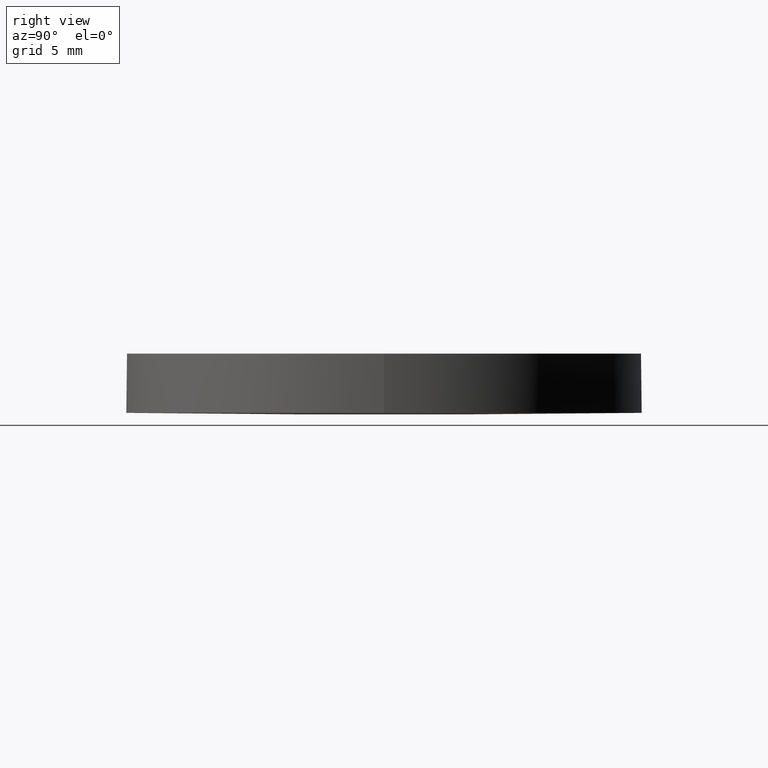
[diagram: clean part render]
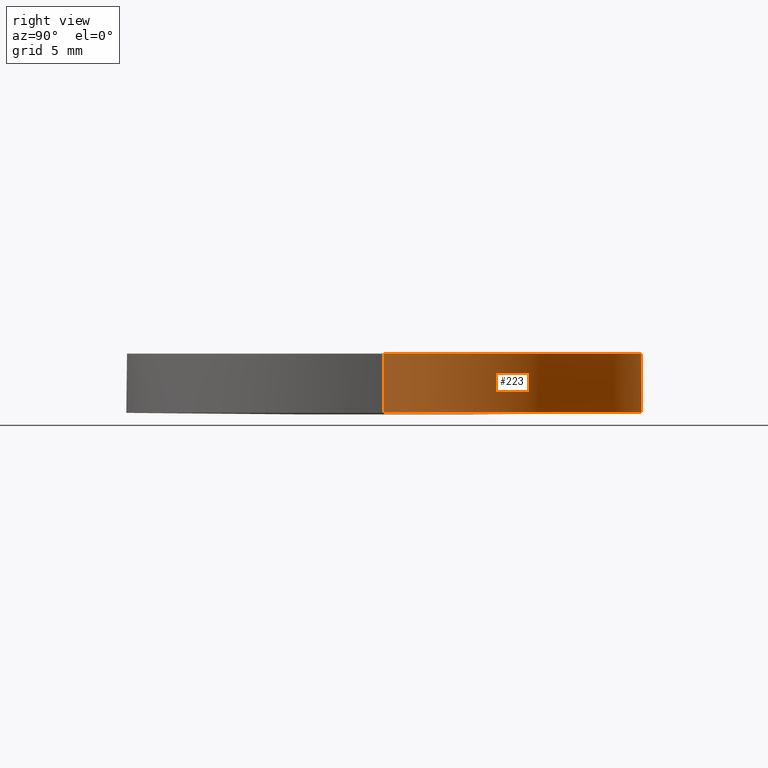
[diagram: same view with one face highlighted and labeled with its STEP entity id]
A machine part, right view. The second image highlights one B-rep face of the part: STEP entity #223.
In plain terms, the highlighted cylindrical surface (partial cylindrical patch) has radius 12.7 mm, axis along (0, 0, 1).
Its self-contained STEP definition (entity closure, byte-faithful):
#1 = CARTESIAN_POINT ( 'NONE',  ( 4.996003610813200500E-016, 2.442490654175340100E-015, 0.08182665158325720700 ) ) ;
#2 = EDGE_CURVE ( 'NONE', #45, #191, #126, .T. ) ;
#7 = CIRCLE ( 'NONE', #74, 12.69999999999999900 ) ;
#8 = CARTESIAN_POINT ( 'NONE',  ( -12.69999999999999900, 3.997792089092478900E-015, 0.08182665158325720700 ) ) ;
#9 = DIRECTION ( 'NONE',  ( 1.000000000000000000, 0.0000000000000000000, 0.0000000000000000000 ) ) ;
#11 = EDGE_CURVE ( 'NONE', #45, #36, #7, .T. ) ;
#17 = DIRECTION ( 'NONE',  ( -0.0000000000000000000, -0.0000000000000000000, -1.000000000000000000 ) ) ;
#21 = AXIS2_PLACEMENT_3D ( 'NONE', #199, #66, #145 ) ;
#32 = VECTOR ( 'NONE', #226, 1000.000000000000000 ) ;
#34 = DIRECTION ( 'NONE',  ( 1.000000000000000000, -1.776356839400250500E-015, 0.0000000000000000000 ) ) ;
#35 = AXIS2_PLACEMENT_3D ( 'NONE', #192, #100, #153 ) ;
#36 = VERTEX_POINT ( 'NONE', #206 ) ;
#43 = VERTEX_POINT ( 'NONE', #208 ) ;
#45 = VERTEX_POINT ( 'NONE', #166 ) ;
#51 = CARTESIAN_POINT ( 'NONE',  ( 12.69999999999999900, 2.442490654175340100E-015, 0.08182665158325720700 ) ) ;
#57 = AXIS2_PLACEMENT_3D ( 'NONE', #1, #17, #34 ) ;
#61 = EDGE_CURVE ( 'NONE', #191, #89, #148, .T. ) ;
#66 = DIRECTION ( 'NONE',  ( 0.0000000000000000000, 0.0000000000000000000, 1.000000000000000000 ) ) ;
#70 = DIRECTION ( 'NONE',  ( 0.0000000000000000000, 0.0000000000000000000, 1.000000000000000000 ) ) ;
#74 = AXIS2_PLACEMENT_3D ( 'NONE', #114, #119, #9 ) ;
#78 = FACE_OUTER_BOUND ( 'NONE', #149, .T. ) ;
#89 = VERTEX_POINT ( 'NONE', #229 ) ;
#97 = CIRCLE ( 'NONE', #57, 12.69999999999999900 ) ;
#100 = DIRECTION ( 'NONE',  ( -0.0000000000000000000, -0.0000000000000000000, -1.000000000000000000 ) ) ;
#104 = VECTOR ( 'NONE', #70, 1000.000000000000000 ) ;
#114 = CARTESIAN_POINT ( 'NONE',  ( 4.996003610813200500E-016, 2.442490654175340100E-015, 0.08182665158325720700 ) ) ;
#118 = ORIENTED_EDGE ( 'NONE', *, *, #2, .T. ) ;
#119 = DIRECTION ( 'NONE',  ( -0.0000000000000000000, -0.0000000000000000000, -1.000000000000000000 ) ) ;
#121 = CARTESIAN_POINT ( 'NONE',  ( -12.69999999999999900, 3.997792089092478900E-015, 3.000000000000000000 ) ) ;
#123 = EDGE_CURVE ( 'NONE', #43, #89, #161, .T. ) ;
#126 = LINE ( 'NONE', #8, #32 ) ;
#144 = ORIENTED_EDGE ( 'NONE', *, *, #123, .F. ) ;
#145 = DIRECTION ( 'NONE',  ( 1.000000000000000000, 0.0000000000000000000, 0.0000000000000000000 ) ) ;
#148 = CIRCLE ( 'NONE', #35, 12.69999999999999900 ) ;
#149 = EDGE_LOOP ( 'NONE', ( #222, #118, #213, #144, #186 ) ) ;
#153 = DIRECTION ( 'NONE',  ( 1.000000000000000000, 0.0000000000000000000, 0.0000000000000000000 ) ) ;
#161 = LINE ( 'NONE', #51, #104 ) ;
#166 = CARTESIAN_POINT ( 'NONE',  ( -12.69999999999999900, 3.997792089092478900E-015, 0.08182665158325720700 ) ) ;
#174 = EDGE_CURVE ( 'NONE', #36, #43, #97, .T. ) ;
#178 = CYLINDRICAL_SURFACE ( 'NONE', #21, 12.69999999999999900 ) ;
#186 = ORIENTED_EDGE ( 'NONE', *, *, #174, .F. ) ;
#191 = VERTEX_POINT ( 'NONE', #121 ) ;
#192 = CARTESIAN_POINT ( 'NONE',  ( 4.996003610813200500E-016, 2.442490654175340100E-015, 3.000000000000000000 ) ) ;
#199 = CARTESIAN_POINT ( 'NONE',  ( 4.996003610813200500E-016, 2.442490654175340100E-015, 0.08182665158325720700 ) ) ;
#206 = CARTESIAN_POINT ( 'NONE',  ( -8.420118560817468000E-014, 12.69999999999757600, 0.08182665158327578900 ) ) ;
#208 = CARTESIAN_POINT ( 'NONE',  ( 12.69999999999999900, 2.442490654175340100E-015, 0.08182665158325720700 ) ) ;
#213 = ORIENTED_EDGE ( 'NONE', *, *, #61, .T. ) ;
#222 = ORIENTED_EDGE ( 'NONE', *, *, #11, .F. ) ;
#223 = ADVANCED_FACE ( 'NONE', ( #78 ), #178, .T. ) ;
#226 = DIRECTION ( 'NONE',  ( 0.0000000000000000000, 0.0000000000000000000, 1.000000000000000000 ) ) ;
#229 = CARTESIAN_POINT ( 'NONE',  ( 12.69999999999999900, 2.442490654175340100E-015, 3.000000000000000000 ) ) ;